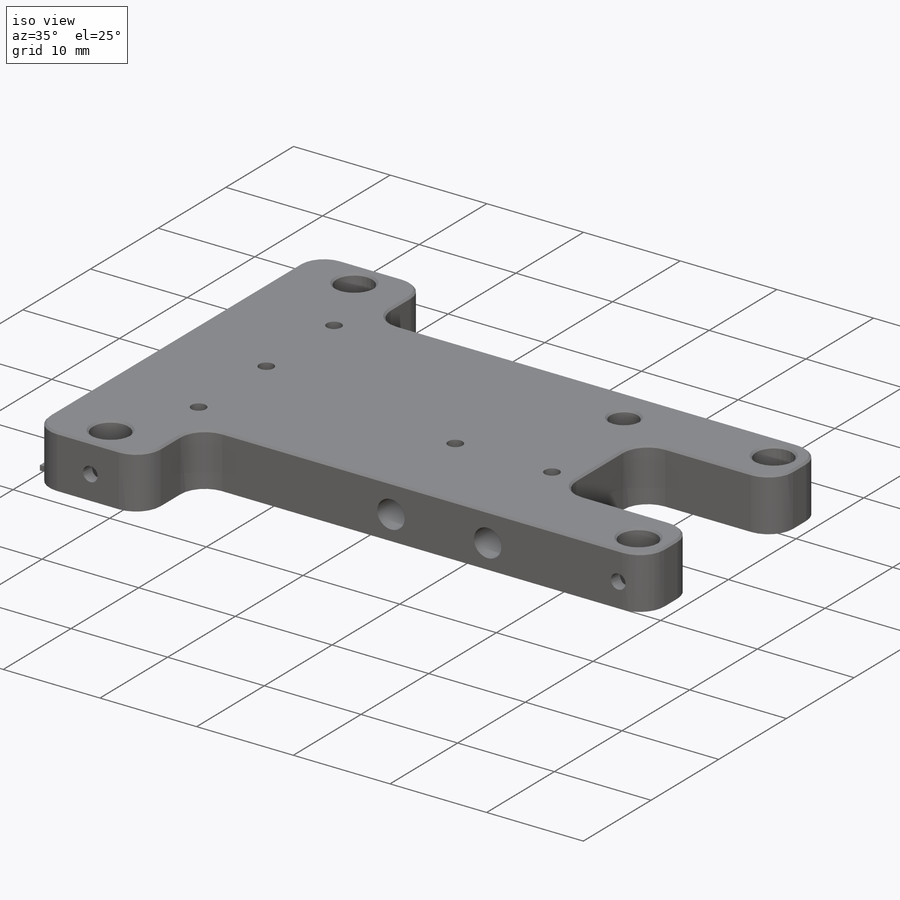
[diagram: iso view]
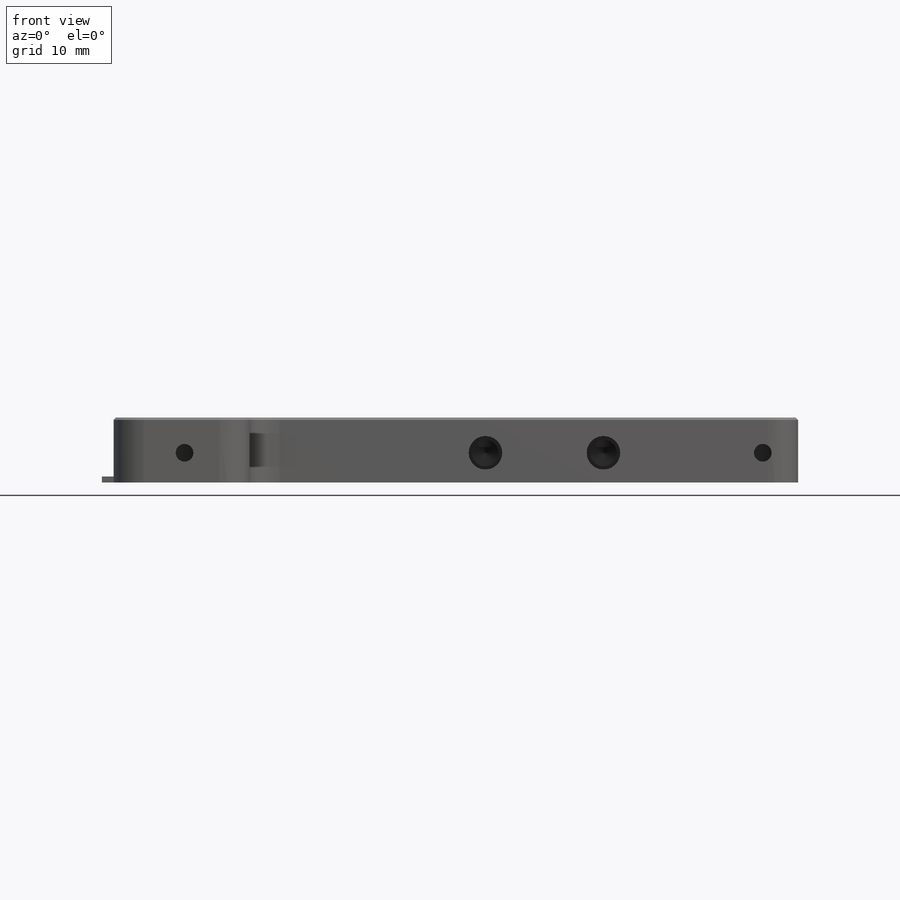
[diagram: front view]
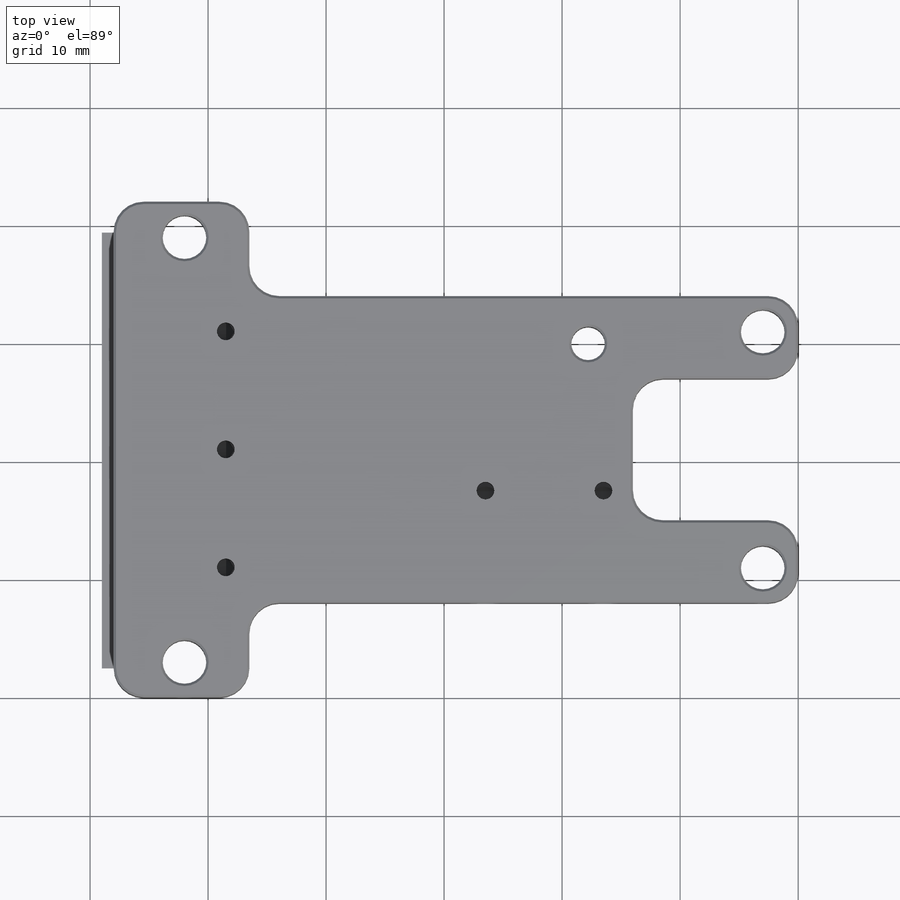
[diagram: top view]
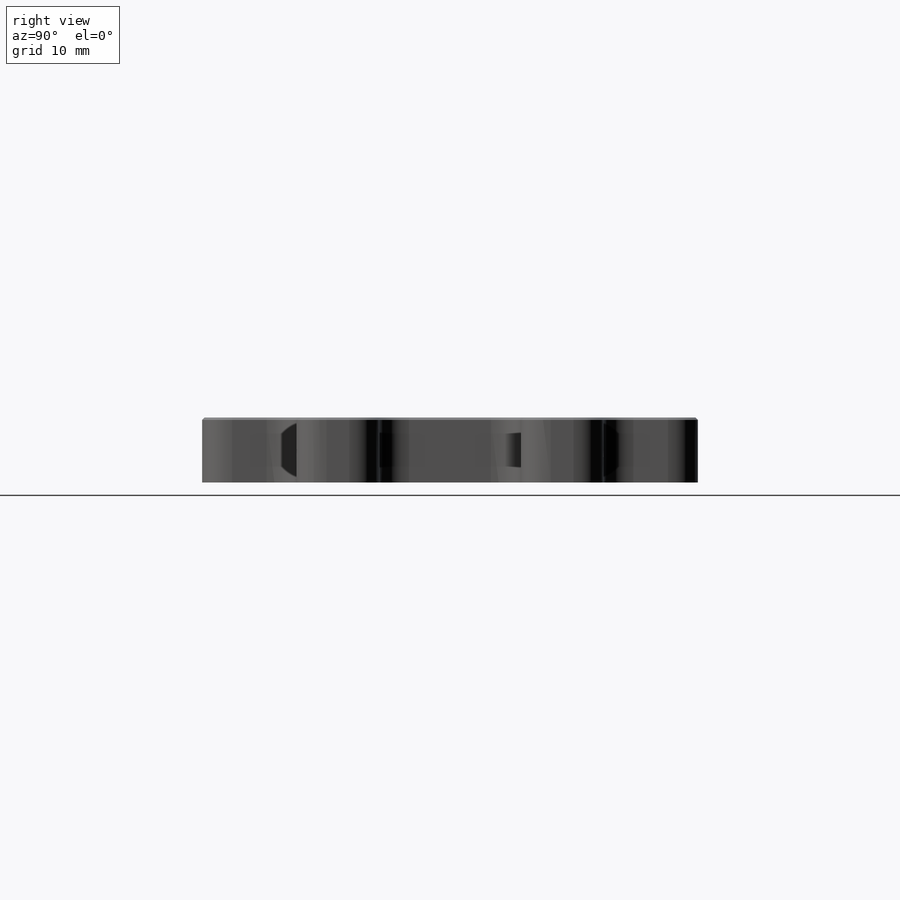
[diagram: right view]
SOLIDWORKS PART (.sldprt)
format: sldprt  version: not decoded by parser v0  size: 583,168 bytes
history: native  units: mm
features: sketch x12, cut_extrude x6, extrude x2, mirror x2, hole x2, material x1, plane x1, fillet x1, chamfer x1 + 1 further entry (+13 scaffold rows collapsed)
feature tree (42):
  scaffold x13  (default folders/planes/origin — collapsed)
  material  "6061-T6 (SS)"
  "Origin"  ID=-1
  sketch  "Sketch1"  dims[D1=58.0mm D2=42.0mm]
  extrude  "Extrude1"  Depth=5.5mm
  plane  "Plane1"
  sketch  "Sketch2"  dims[c1.D1=7.0mm c1.D2=7.0mm c2.D1=6.0mm c2.D2=6.0mm c2.D3=14.0mm]
  cut_extrude  "Extrude2"  [1 undecoded]
  sketch  "Sketch3"  dims[D1=11.5mm D2=13.0mm]
  cut_extrude  "Extrude3"  [1 undecoded]
  sketch  "Sketch4"  dims[D1=3.7mm D2=3.7mm D3=6.0mm D4=18.0mm D5=10.0mm D6=49.0mm]
  cut_extrude  "Extrude4"  [1 undecoded]
  mirror  "Mirror2"
  fillet  "Fillet2"  Radius=2.54mm
  hole  "#4-40 Tapped Hole1"  Diameter=2.2606mm Depth=10.135mm
  sketch  "3DSketch1"  dims[D1=9.0mm D2=40.2mm]
  sketch  "Sketch5"  dims[hole-wizard template sketch: 29 standard entries collapsed; hole parameters kept: c8.Tap Drill Depth=10.135mm c8.Thread Major Dia.=2.8448mm c8.Thread Depth=8.23mm c8.D5=~14.816244mm c8.Drill Angle=118.0deg]
  chamfer  "Chamfer1"  Distance=0.2mm Angle=45deg
  sketch  "Sketch6"  dims[D1=13.0mm D2=13.0mm D3=0.5mm]
  extrude  "Extrude5"  Depth=1mm
  hole  "#4-40 Tapped Hole2"  Diameter=2.2606mm Depth=9.525mm
  sketch  "3DSketch2"  dims[c1.D1=~34.020926mm c1.D2=31.5mm c2.D1=31.5mm c2.D2=10.0mm c2.D3=2.5mm c2.D4=2.5mm c2.D5=10.0mm c2.D6=10.0mm]
  sketch  "Sketch7"  dims[hole-wizard template sketch: 29 standard entries collapsed; hole parameters kept: c8.Tap Drill Depth=9.525mm c8.Thread Major Dia.=2.8448mm c8.Thread Depth=8.2296mm c8.D5=~14.816244mm c8.Drill Angle=118.0deg]
  sketch  "Sketch8"  dims[D1=1.5mm D2=1.5mm D3=1.5mm D4=1.5mm D5=1.5mm D6=9.5mm D7=9.5mm D8=31.5mm D9=10.0mm D10=10.0mm D11=10.0mm]
  cut_extrude  "Extrude6"  Depth=2.5mm
  sketch  "Sketch9"  dims[D1=6.0mm D2=2.5mm D3=55.0mm]
  cut_extrude  "Extrude7"  Depth=2.5mm
  sketch  "Sketch10"  dims[D1=1.5mm D2=6.0mm D3=2.5mm]
  cut_extrude  "Extrude8"  Depth=2.5mm
  mirror  "Mirror3"
decode coverage: 21 of 26 modeling features carry decoded parameters; 1 rows unclassified (native names shown)
note: ~ marks probable driven/reference dimensions
note: 3 parameter values undecoded
summary: no parameter record found for 3 features
note: suppression state not decoded; provenance and decode notes live in map.json
